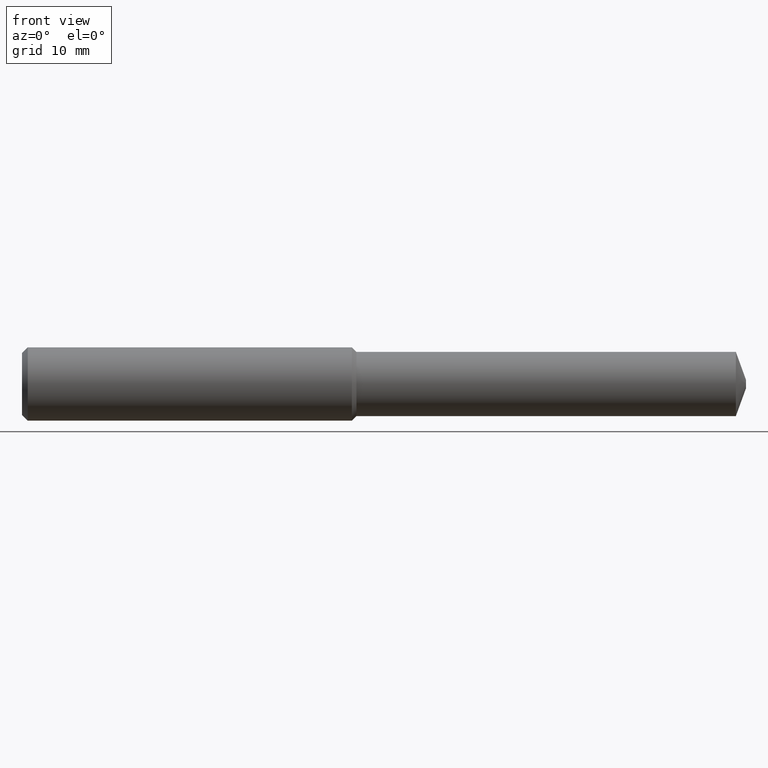
[diagram: clean part render]
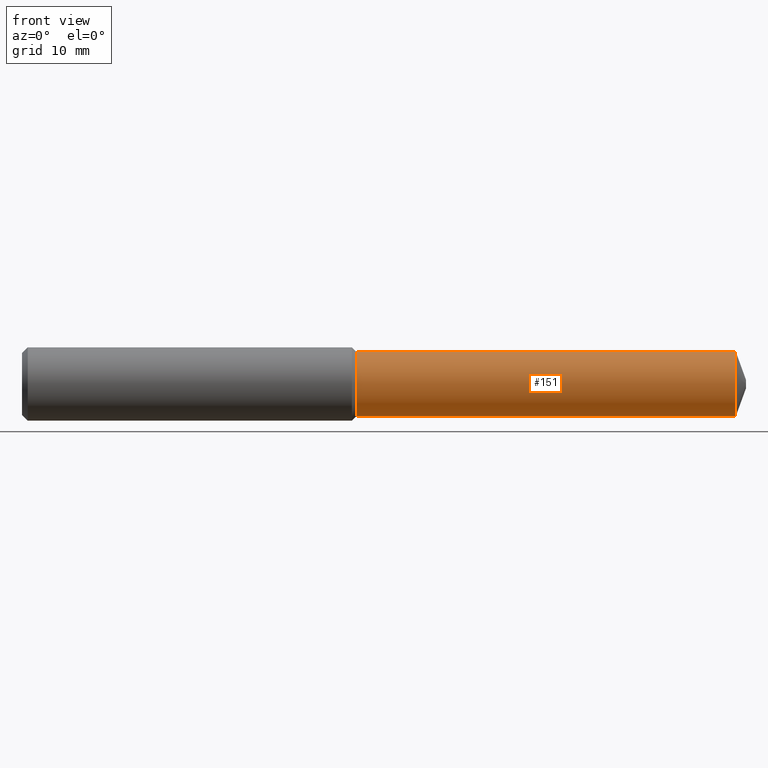
[diagram: same view with one face highlighted and labeled with its STEP entity id]
A machine part, front view. The second image highlights one B-rep face of the part: STEP entity #151.
In plain terms, the highlighted cylindrical surface (edge-blend (fillet) strip) has radius 3.5052 mm, axis along (1, -0, -0).
Its self-contained STEP definition (entity closure, byte-faithful):
#1 = LINE ( 'NONE', #347, #46 ) ;
#24 = DIRECTION ( 'NONE',  ( 1.000000000000000000, -0.000000000000000000, -0.000000000000000000 ) ) ;
#46 = VECTOR ( 'NONE', #317, 39.37007874015748143 ) ;
#47 = CARTESIAN_POINT ( 'NONE',  ( 1.436803149606299179, 1.690012582823350463E-17, 0.1380000000000001781 ) ) ;
#50 = EDGE_CURVE ( 'NONE', #360, #319, #72, .T. ) ;
#72 = CIRCLE ( 'NONE', #315, 0.1380000000000003724 ) ;
#77 = CARTESIAN_POINT ( 'NONE',  ( 3.066377807243363840, 0.000000000000000000, 0.000000000000000000 ) ) ;
#87 = VECTOR ( 'NONE', #172, 39.37007874015748143 ) ;
#100 = DIRECTION ( 'NONE',  ( 1.000000000000000000, -0.000000000000000000, -0.000000000000000000 ) ) ;
#107 = DIRECTION ( 'NONE',  ( 1.000000000000000000, -0.000000000000000000, -0.000000000000000000 ) ) ;
#113 = CARTESIAN_POINT ( 'NONE',  ( 3.066377807243363840, 1.690012582823352312E-17, -0.1380000000000004001 ) ) ;
#122 = VERTEX_POINT ( 'NONE', #47 ) ;
#131 = FACE_OUTER_BOUND ( 'NONE', #180, .T. ) ;
#151 = ADVANCED_FACE ( 'NONE', ( #131 ), #255, .T. ) ;
#172 = DIRECTION ( 'NONE',  ( 1.000000000000000000, -0.000000000000000000, -0.000000000000000000 ) ) ;
#173 = DIRECTION ( 'NONE',  ( 0.000000000000000000, 0.000000000000000000, -1.000000000000000000 ) ) ;
#179 = ORIENTED_EDGE ( 'NONE', *, *, #316, .T. ) ;
#180 = EDGE_LOOP ( 'NONE', ( #272, #332, #179, #292 ) ) ;
#189 = AXIS2_PLACEMENT_3D ( 'NONE', #366, #100, #282 ) ;
#197 = CARTESIAN_POINT ( 'NONE',  ( 3.066377807243363840, 0.000000000000000000, 0.1380000000000004001 ) ) ;
#228 = CIRCLE ( 'NONE', #281, 0.1380000000000001781 ) ;
#237 = CARTESIAN_POINT ( 'NONE',  ( -0.03808593750000075634, 1.690012582823350771E-17, 0.1380000000000002891 ) ) ;
#243 = VERTEX_POINT ( 'NONE', #287 ) ;
#255 = CYLINDRICAL_SURFACE ( 'NONE', #189, 0.1380000000000002891 ) ;
#262 = CARTESIAN_POINT ( 'NONE',  ( 1.436803149606299179, 0.000000000000000000, 0.000000000000000000 ) ) ;
#263 = EDGE_CURVE ( 'NONE', #122, #243, #228, .T. ) ;
#272 = ORIENTED_EDGE ( 'NONE', *, *, #356, .F. ) ;
#281 = AXIS2_PLACEMENT_3D ( 'NONE', #262, #107, #173 ) ;
#282 = DIRECTION ( 'NONE',  ( 0.000000000000000000, 0.000000000000000000, -1.000000000000000000 ) ) ;
#287 = CARTESIAN_POINT ( 'NONE',  ( 1.436803149606299179, 0.000000000000000000, -0.1380000000000001781 ) ) ;
#292 = ORIENTED_EDGE ( 'NONE', *, *, #50, .F. ) ;
#315 = AXIS2_PLACEMENT_3D ( 'NONE', #77, #24, #369 ) ;
#316 = EDGE_CURVE ( 'NONE', #243, #319, #1, .T. ) ;
#317 = DIRECTION ( 'NONE',  ( 1.000000000000000000, -0.000000000000000000, -0.000000000000000000 ) ) ;
#319 = VERTEX_POINT ( 'NONE', #113 ) ;
#332 = ORIENTED_EDGE ( 'NONE', *, *, #263, .T. ) ;
#347 = CARTESIAN_POINT ( 'NONE',  ( -0.03808593750000075634, 0.000000000000000000, -0.1380000000000002891 ) ) ;
#349 = LINE ( 'NONE', #237, #87 ) ;
#356 = EDGE_CURVE ( 'NONE', #122, #360, #349, .T. ) ;
#360 = VERTEX_POINT ( 'NONE', #197 ) ;
#366 = CARTESIAN_POINT ( 'NONE',  ( -0.03808593750000075634, 0.000000000000000000, 0.000000000000000000 ) ) ;
#369 = DIRECTION ( 'NONE',  ( 0.000000000000000000, 0.000000000000000000, -1.000000000000000000 ) ) ;